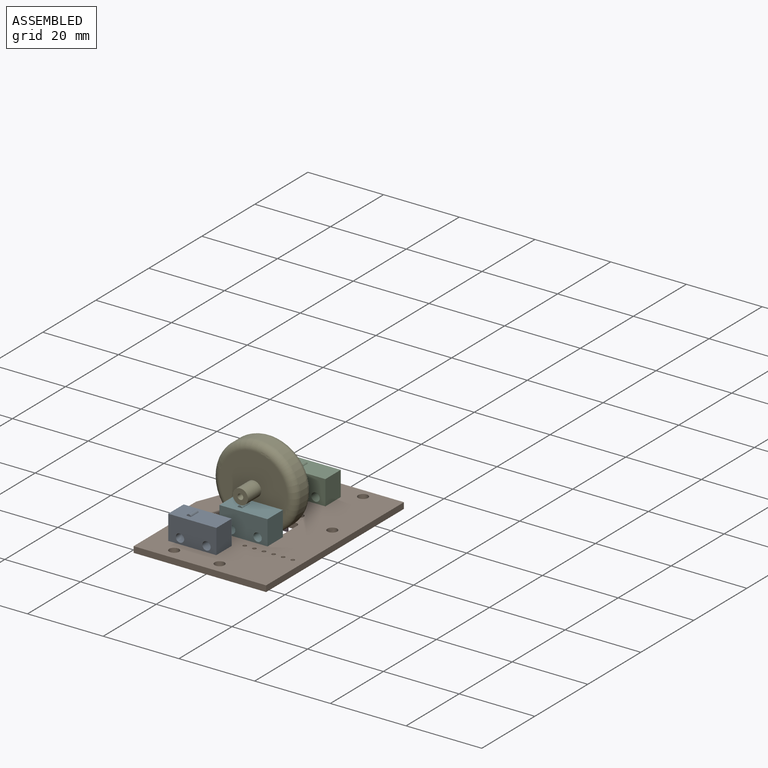
[diagram: assembled view]
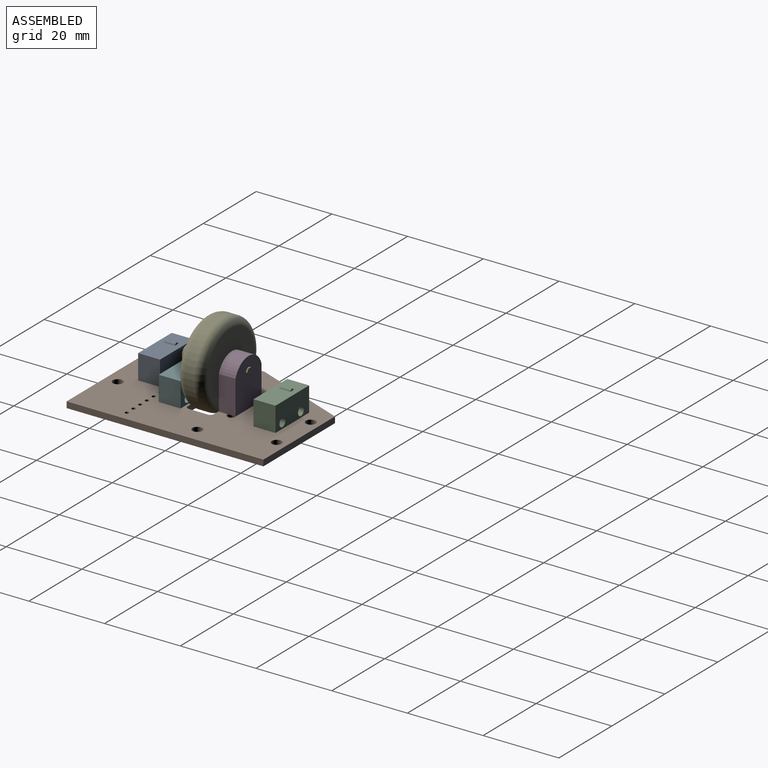
[diagram: assembled view, second angle]
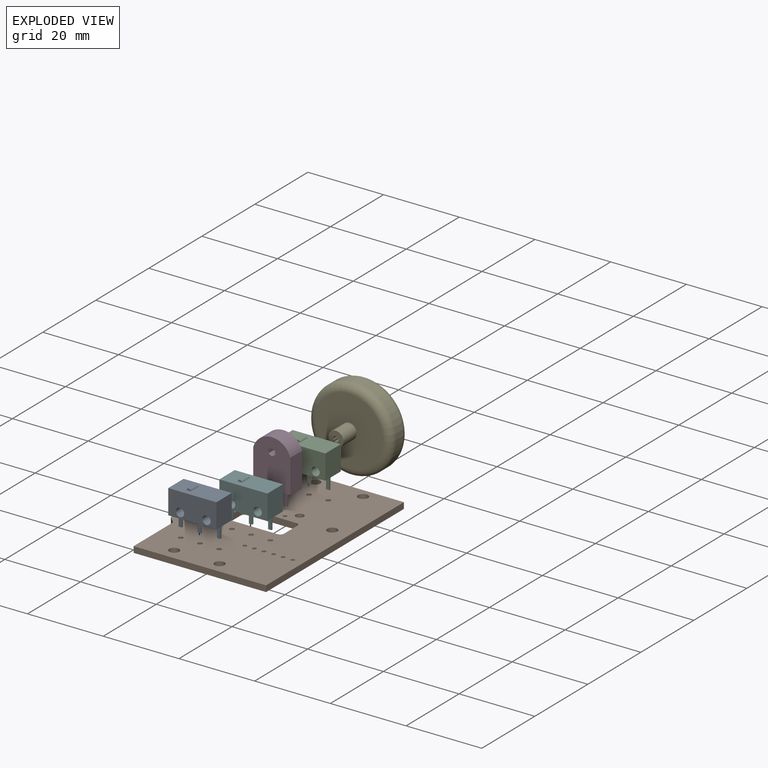
[diagram: exploded view]
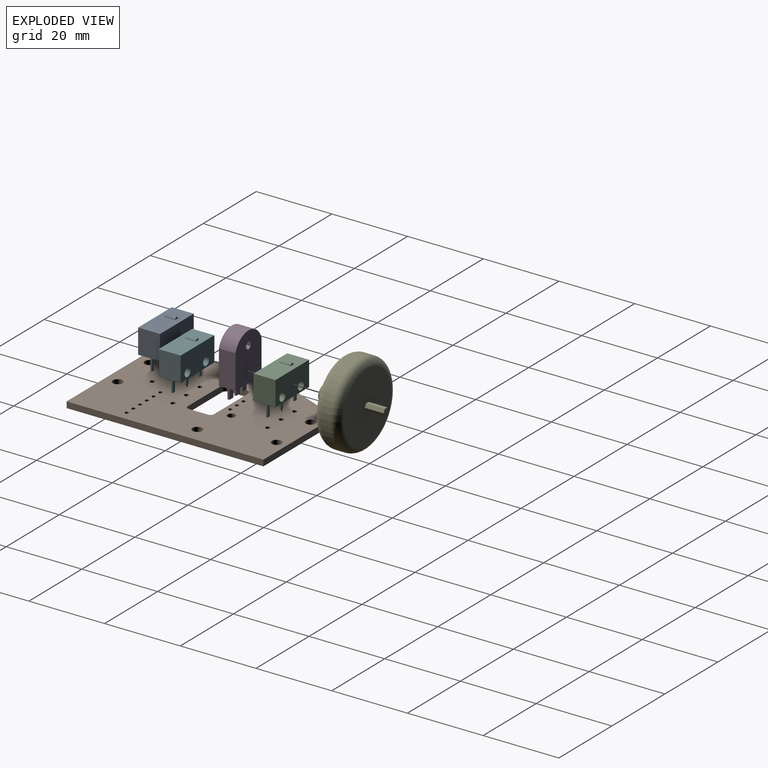
[diagram: exploded view, second angle]
ASSEMBLY  parts=6 mates=5
PART A: 26 faces, bbox 5.8x12.7x10.5 mm
  f0: plane 12.7x6.5mm, normal (-1,0,0), area 74.9mm2, adj f1,f3,f4,f5,f24,f25
  f1: plane 6.5x5.8mm, normal (0,-1,0), area 37.7mm2, adj f0,f2,f4,f5
  f2: plane 12.7x6.5mm, normal (1,0,0), area 74.9mm2, adj f1,f3,f4,f5,f24,f25
  f3: plane 6.5x5.8mm, normal (0,1,0), area 37.7mm2, adj f0,f2,f4,f5
  f4: plane 12.7x5.8mm, normal (0,0,1), area 70.2mm2, adj f0,f1,f2,f3,f21,f22,f23
  f5: plane 12.7x5.8mm, normal (0,0,-1), area 72.6mm2, adj f0,f1,f2,f3,f6,f7,f8,f9
  f6: plane 3.5x0.4mm, normal (0,1,0), area 1.4mm2, adj f5,f7,f9,f10
  f7: plane 3.5x0.9mm, normal (1,0,0), area 3.2mm2, adj f5,f6,f8,f10
  f8: plane 3.5x0.4mm, normal (0,-1,0), area 1.4mm2, adj f5,f7,f9,f10
  f9: plane 3.5x0.9mm, normal (-1,0,0), area 3.2mm2, adj f5,f6,f8,f10
  f10: plane 0.9x0.4mm, normal (0,0,-1), area 0.4mm2, adj f6,f7,f8,f9
  f11: plane 3.5x0.9mm, normal (1,0,0), area 3.1mm2, adj f5,f12,f14,f15
  f12: plane 3.5x0.4mm, normal (0,-1,0), area 1.4mm2, adj f5,f11,f13,f15
  f13: plane 3.5x0.9mm, normal (-1,0,0), area 3.1mm2, adj f5,f12,f14,f15
  f14: plane 3.5x0.4mm, normal (0,1,0), area 1.4mm2, adj f5,f11,f13,f15
  f15: plane 0.9x0.4mm, normal (0,0,-1), area 0.4mm2, adj f11,f12,f13,f14
  f16: plane 3.5x0.9mm, normal (1,0,0), area 3.2mm2, adj f5,f17,f19,f20
  f17: plane 3.5x0.4mm, normal (0,-1,0), area 1.4mm2, adj f5,f16,f18,f20
  f18: plane 3.5x0.9mm, normal (-1,0,0), area 3.2mm2, adj f5,f17,f19,f20
  f19: plane 3.5x0.4mm, normal (0,1,0), area 1.4mm2, adj f5,f16,f18,f20
  f20: plane 0.9x0.4mm, normal (0,0,-1), area 0.4mm2, adj f16,f17,f18,f19
  f21: cylinder r=0.6mm len=2.9mm, axis (-1,0,0), area 4.9mm2, adj f4,f22,f23
  f22: plane 1.18x0.5mm, normal (1,0,0), area 0.4mm2, adj f4,f21
  f23: plane 1.18x0.5mm, normal (-1,0,0), area 0.4mm2, adj f4,f21
  f24: cylinder r=1.1mm len=5.8mm, axis (1,0,0), area 40.1mm2, adj f0,f2
  f25: cylinder r=1.1mm len=5.8mm, axis (1,0,0), area 40.1mm2, adj f0,f2
PART B: 43 faces, bbox 37x52x1.6 mm
  f0: plane 27x1.6mm, normal (0,1,0), area 43.2mm2, adj f1,f2,f41,f42
  f1: plane 52x1.6mm, normal (1,0,0), area 83.2mm2, adj f0,f3,f41,f42
  f2: plane 25.6x10mm, normal (-0.93,0.36,0), area 44mm2, adj f0,f4,f41,f42
  f3: plane 35x1.6mm, normal (0,-1,0), area 56mm2, adj f1,f5,f41,f42
  f4: plane 9.5x1.6mm, normal (-1,0,0), area 15.2mm2, adj f2,f6,f41,f42
  f5: plane 14.9x1.6mm, normal (-1,0,0), area 23.8mm2, adj f3,f6,f41,f42
  f6: plane 2x2mm, normal (-0.71,-0.71,0), area 4.5mm2, adj f4,f5,f41,f42
  f7: cylinder r=1.3mm len=2.6mm, axis (0,0,1), area 13.1mm2, adj f41,f42
  f8: cylinder r=1.3mm len=2.6mm, axis (0,0,1), area 13.1mm2, adj f41,f42
  f9: cylinder r=0.5mm len=1.6mm, axis (0,0,1), area 5mm2, adj f41,f42
  f10: cylinder r=0.5mm len=1.6mm, axis (0,0,1), area 5mm2, adj f41,f42
  f11: cylinder r=1.05mm len=2.1mm, axis (0,0,1), area 10.6mm2, adj f41,f42
  f12: cylinder r=0.6mm len=1.6mm, axis (0,0,1), area 6mm2, adj f41,f42
  f13: cylinder r=0.5mm len=1.6mm, axis (0,0,1), area 5mm2, adj f41,f42
  f14: cylinder r=1.3mm len=2.6mm, axis (0,0,1), area 13.1mm2, adj f41,f42
  f15: cylinder r=0.5mm len=1.6mm, axis (0,0,1), area 5mm2, adj f41,f42
  f16: cylinder r=0.6mm len=1.6mm, axis (0,0,1), area 6mm2, adj f41,f42
  f17: cylinder r=0.5mm len=1.6mm, axis (0,0,1), area 5mm2, adj f41,f42
  f18: cylinder r=0.6mm len=1.6mm, axis (0,0,1), area 6mm2, adj f41,f42
  f19: cylinder r=0.5mm len=1.6mm, axis (0,0,1), area 5mm2, adj f41,f42
  f20: cylinder r=0.6mm len=1.6mm, axis (0,0,1), area 6mm2, adj f41,f42
  f21: cylinder r=1.3mm len=2.6mm, axis (0,0,1), area 13.1mm2, adj f41,f42
  f22: cylinder r=0.6mm len=1.6mm, axis (0,0,1), area 6mm2, adj f41,f42
  f23: cylinder r=0.5mm len=1.6mm, axis (0,0,1), area 5mm2, adj f41,f42
  f24: cylinder r=1.05mm len=2.1mm, axis (0,0,1), area 10.6mm2, adj f41,f42
  f25: cylinder r=0.5mm len=1.6mm, axis (0,0,1), area 5mm2, adj f41,f42
  f26: cylinder r=0.6mm len=1.6mm, axis (0,0,1), area 6mm2, adj f41,f42
  f27: cylinder r=1.3mm len=2.6mm, axis (0,0,1), area 13.1mm2, adj f41,f42
  f28: cylinder r=0.6mm len=1.6mm, axis (0,0,1), area 6mm2, adj f41,f42
  f29: cylinder r=1.3mm len=2.6mm, axis (0,0,1), area 13.1mm2, adj f41,f42
  f30: cylinder r=0.6mm len=1.6mm, axis (0,0,1), area 6mm2, adj f41,f42
  f31: plane 5x1.6mm, normal (1,0,0), area 8mm2, adj f32,f33,f41,f42
  f32: cylinder r=1mm len=1.6mm, axis (0,0,1), area 2.5mm2, adj f31,f34,f41,f42
  f33: cylinder r=1mm len=1.6mm, axis (0,0,1), area 2.5mm2, adj f31,f35,f41,f42
  f34: plane 13x1.6mm, normal (0,1,0), area 20.8mm2, adj f32,f36,f41,f42
  f35: plane 13x1.6mm, normal (0,-1,0), area 20.8mm2, adj f33,f37,f41,f42
  f36: cylinder r=1mm len=1.6mm, axis (0,0,1), area 2.5mm2, adj f34,f38,f41,f42
  f37: cylinder r=1mm len=1.6mm, axis (0,0,1), area 2.5mm2, adj f35,f38,f41,f42
  f38: plane 5x1.6mm, normal (-1,0,0), area 8mm2, adj f36,f37,f41,f42
  f39: cylinder r=0.5mm len=1.6mm, axis (0,0,1), area 5mm2, adj f41,f42
  f40: cylinder r=0.6mm len=1.6mm, axis (0,0,1), area 6mm2, adj f41,f42
  f41: plane 52x37mm, normal (0,0,1), area 1604mm2, adj f0,f1,f2,f3,f4,f5,f6,f7
  f42: plane 52x37mm, normal (0,0,-1), area 1604mm2, adj f0,f1,f2,f3,f4,f5,f6,f7
PART C: same geometry as A
PART D: 27 faces, bbox 9.8x4.4x16.1 mm
  f0: plane 9.8x4.4mm, normal (0,0,-1), area 40.9mm2, adj f1,f2,f3,f5,f12,f13,f14,f15
  f1: plane 12.6x9.8mm, normal (0,-1,0), area 111.5mm2, adj f0,f3,f4,f5,f6,f7,f8,f9
  f2: plane 12.6x9.8mm, normal (0,1,0), area 111.5mm2, adj f0,f3,f4,f5,f6,f7,f8,f9
  f3: plane 9x4.4mm, normal (1,0,0), area 39.6mm2, adj f0,f1,f2,f4
  f4: cylinder r=5.13mm len=9.8mm, axis (0,1,0), area 57.3mm2, adj f1,f2,f3,f5
  f5: plane 9x4.4mm, normal (-1,0,0), area 39.6mm2, adj f0,f1,f2,f4
  f6: plane 4.4x1mm, normal (1,0,0), area 4.4mm2, adj f1,f2,f7,f9
  f7: plane 4.4x0.87mm, normal (0.5,0,0.87), area 4.4mm2, adj f1,f2,f6,f8
  f8: plane 4.4x0.87mm, normal (-0.5,0,0.87), area 4.4mm2, adj f1,f2,f7,f10
  f9: plane 4.4x0.87mm, normal (0.5,0,-0.87), area 4.4mm2, adj f1,f2,f6,f11
  f10: plane 4.4x1mm, normal (-1,0,0), area 4.4mm2, adj f1,f2,f8,f11
  f11: plane 4.4x0.87mm, normal (-0.5,0,-0.87), area 4.4mm2, adj f1,f2,f9,f10
  f12: plane 3.5x0.5mm, normal (1,0,0), area 1.8mm2, adj f0,f13,f15,f16
  f13: plane 3.5x1.5mm, normal (0,-1,0), area 5.2mm2, adj f0,f12,f14,f16
  f14: plane 3.5x0.5mm, normal (-1,0,0), area 1.8mm2, adj f0,f13,f15,f16
  f15: plane 3.5x1.5mm, normal (0,1,0), area 5.2mm2, adj f0,f12,f14,f16
  f16: plane 1.5x0.5mm, normal (0,0,-1), area 0.8mm2, adj f12,f13,f14,f15
  f17: plane 3.5x0.5mm, normal (1,0,0), area 1.8mm2, adj f0,f18,f20,f21
  f18: plane 3.5x1.5mm, normal (0,-1,0), area 5.2mm2, adj f0,f17,f19,f21
  f19: plane 3.5x0.5mm, normal (-1,0,0), area 1.8mm2, adj f0,f18,f20,f21
  f20: plane 3.5x1.5mm, normal (0,1,0), area 5.2mm2, adj f0,f17,f19,f21
  f21: plane 1.5x0.5mm, normal (0,0,-1), area 0.7mm2, adj f17,f18,f19,f20
  f22: plane 3.5x0.5mm, normal (1,0,0), area 1.8mm2, adj f0,f23,f25,f26
  f23: plane 3.5x1.5mm, normal (0,-1,0), area 5.2mm2, adj f0,f22,f24,f26
  f24: plane 3.5x0.5mm, normal (-1,0,0), area 1.8mm2, adj f0,f23,f25,f26
  f25: plane 3.5x1.5mm, normal (0,1,0), area 5.2mm2, adj f0,f22,f24,f26
  f26: plane 1.5x0.5mm, normal (0,0,-1), area 0.7mm2, adj f22,f23,f24,f25
PART E: 16 faces, bbox 23.5x23.8x16.7 mm
  f0: cylinder r=11mm len=22.02mm, axis (-0.3,0.01,-0.95), area 179.7mm2, adj f3,f4
  f1: plane 18x17.17mm, normal (0.3,-0.01,0.95), area 251.9mm2, adj f4,f9,f10,f11,f12,f13,f14
  f2: plane 18x17.17mm, normal (-0.3,0.01,-0.95), area 241.9mm2, adj f3,f6
  f3: torus R=9mm, axis (0.3,-0.01,0.95), area 202.8mm2, adj f0,f2
  f4: torus R=9mm, axis (0.3,-0.01,0.95), area 202.8mm2, adj f0,f1
  f5: cylinder r=0.75mm len=5.22mm, axis (0.3,-0.01,0.95), area 23.6mm2, adj f7,f8
  f6: cylinder r=2mm len=5.97mm, axis (0.3,-0.01,0.95), area 62.8mm2, adj f2,f7
  f7: plane 4x3.82mm, normal (-0.3,0.01,-0.95), area 10.8mm2, adj f5,f6
  f8: plane 1.5x1.43mm, normal (-0.3,0.01,-0.95), area 1.8mm2, adj f5
  f9: plane 4.92x1.97mm, normal (-0.83,-0.49,0.26), area 5mm2, adj f1,f10,f14,f15
  f10: plane 5.07x2.45mm, normal (-0.01,-1,0), area 5mm2, adj f1,f9,f11,f15
  f11: plane 4.92x1.98mm, normal (0.82,-0.51,-0.26), area 5mm2, adj f1,f10,f12,f15
  f12: plane 4.92x1.97mm, normal (0.83,0.49,-0.26), area 5mm2, adj f1,f11,f13,f15
  f13: plane 5.07x2.45mm, normal (0.01,1,0), area 5mm2, adj f1,f12,f14,f15
  f14: plane 4.92x1.98mm, normal (-0.82,0.51,0.26), area 5mm2, adj f1,f9,f13,f15
  f15: plane 1.91x1.74mm, normal (0.3,-0.01,0.95), area 2.6mm2, adj f9,f10,f11,f12,f13,f14
PART F: same geometry as A
PLACE A rot(axis=(0,0,1),90deg) t=(-4.55,-17,0)mm
PLACE B at identity fixed
PLACE C rot(axis=(0,0,1),90deg) t=(0.45,17,0)mm
PLACE D rot(axis=(0,0,1),180deg) t=(0,3.6,0)mm
PLACE E rot(axis=(-0.98,-0.15,0.15),91.8deg) t=(37.16,-28.2,22.91)mm
PLACE F rot(axis=(0,0,1),90deg) t=(1.95,-7,0)mm
MATE fastened C.f5 <-> B.f16  axis (0,0,-1) through (0.45,17,0)mm
MATE fastened A.f5 <-> B.f18  axis (0,0,-1) through (-4.55,-17,0)mm
MATE revolute D.f2 <-> E.f5  axis (0,-1,0) through (0,3.6,9)mm
MATE fastened F.f5 <-> B.f28  axis (0,0,-1) through (1.95,-7,0)mm
MATE fastened D.f0 <-> B.f23  axis (0,0,-1) through (0,5,0)mm
